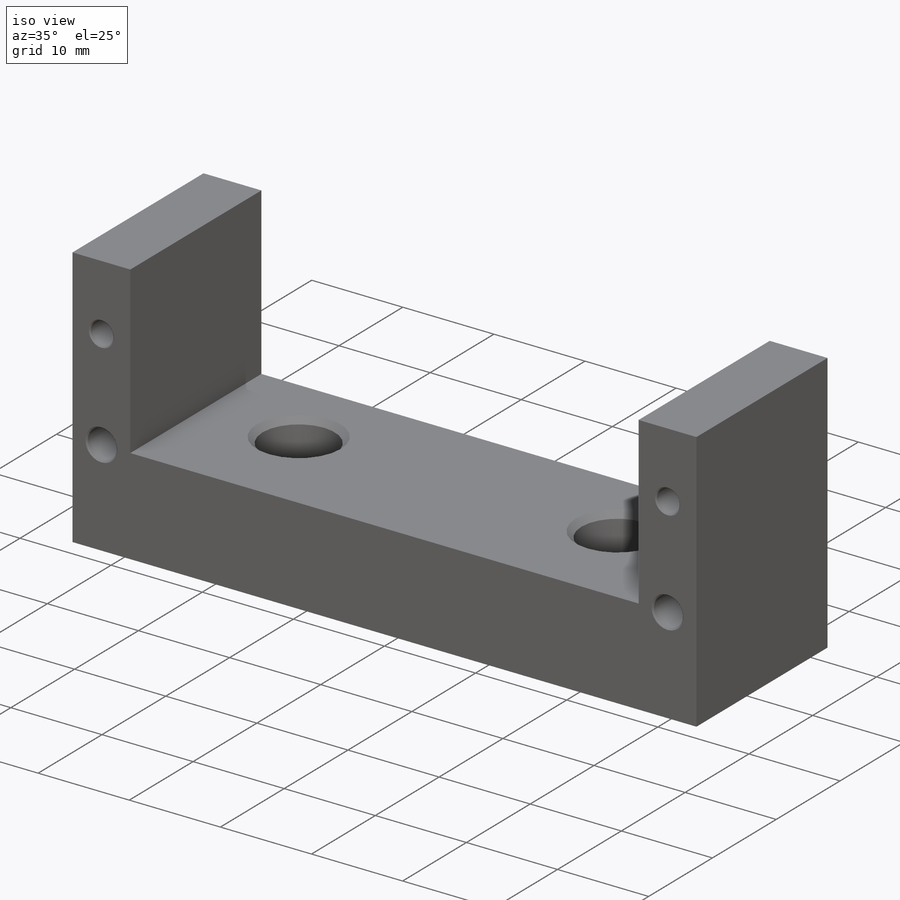
[diagram: iso view]
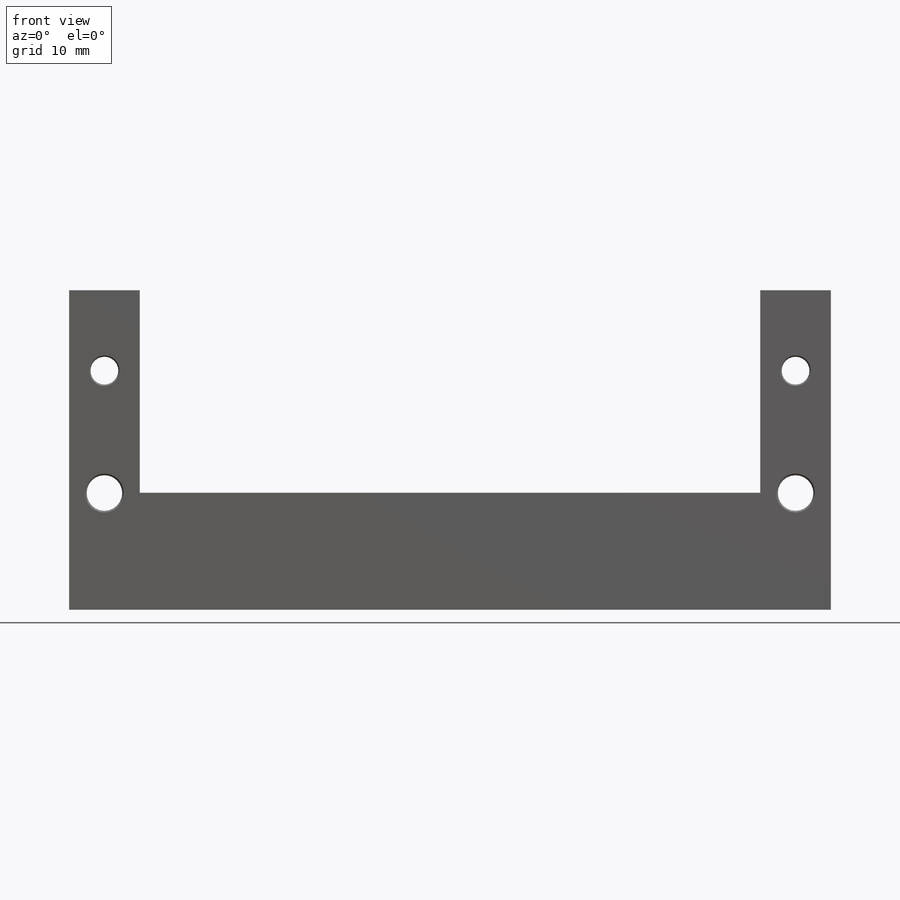
[diagram: front view]
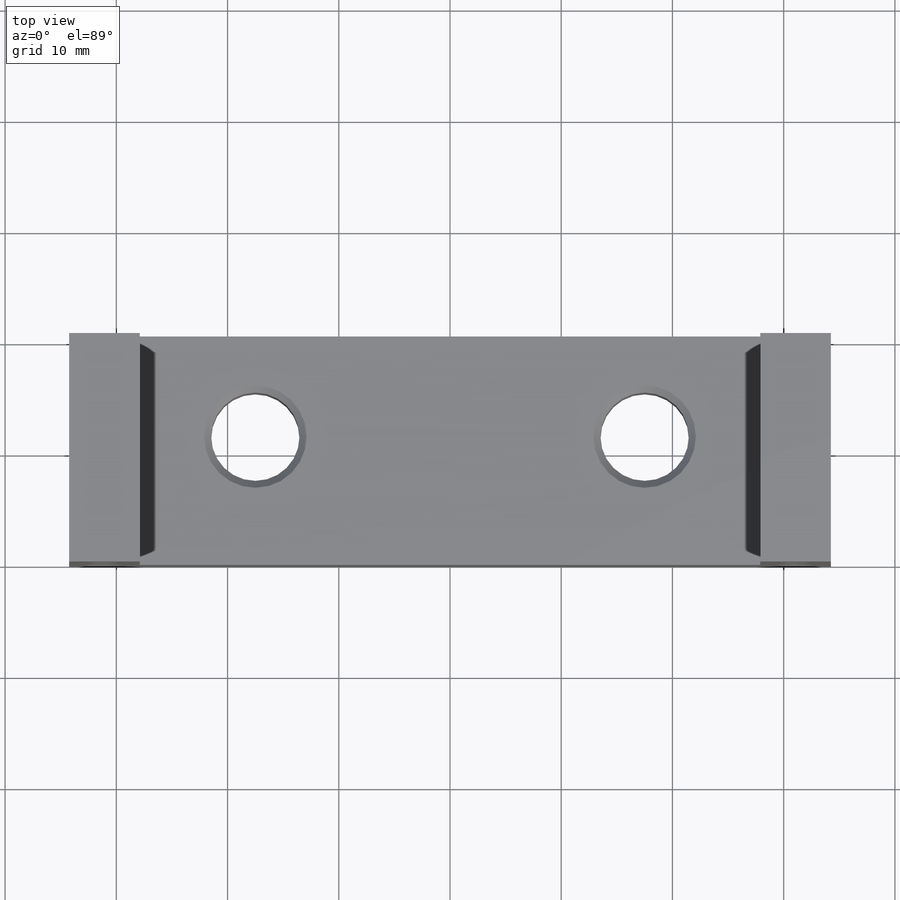
[diagram: top view]
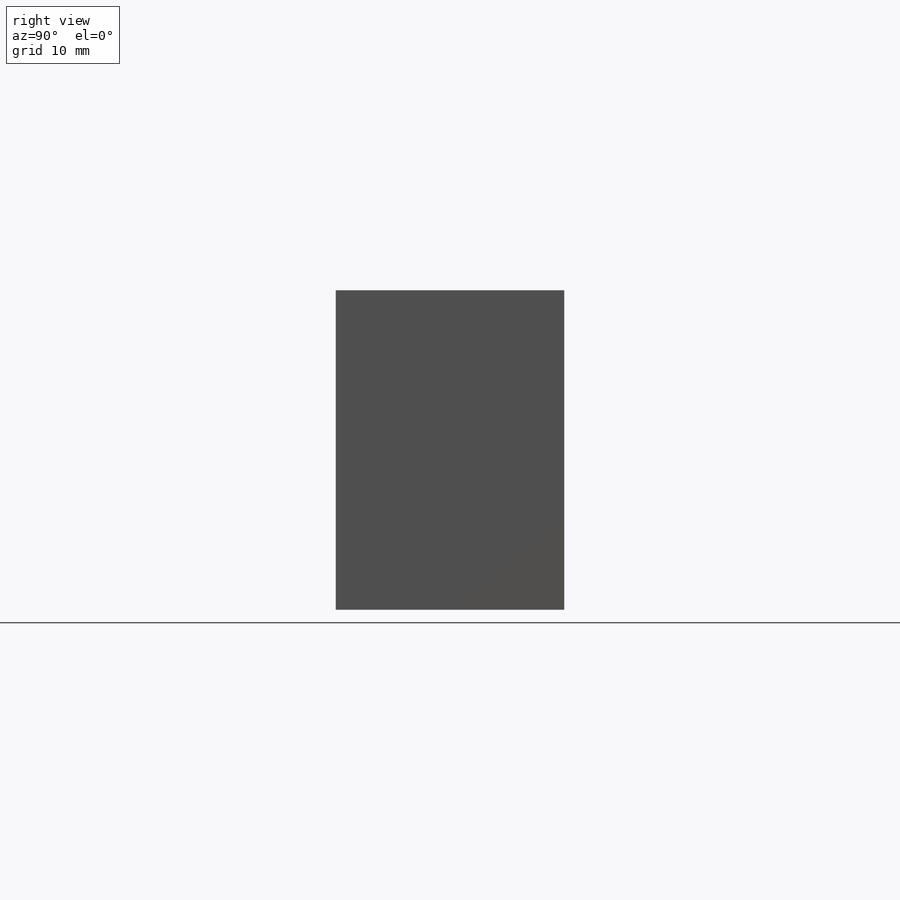
[diagram: right view]
SOLIDWORKS PART (.sldprt)
format: sldprt  version: not decoded by parser v0  size: 292,352 bytes
history: native  units: mm
features: sketch x10, hole x4, material x1, extrude x1, cut_extrude x1 (+16 scaffold rows collapsed)
feature tree (33):
  scaffold x16  (default folders/planes/origin — collapsed)
  material  "Material <not specified>"
  sketch  "Sketch1"  dims[D1=20.55mm D2=68.4872mm]
  extrude  "Boss-Extrude1"  Depth=28.732mm
  sketch  "Sketch2"  dims[D1=18.207mm D2=55.7872mm]
  cut_extrude  "Cut-Extrude1"  [1 undecoded]
  hole  "Ø2.5 (2.5) Diameter Hole1"  Diameter=2.5mm Depth=20.55mm
  sketch  "Sketch4"  dims[D1=21.5mm D2=62.1372mm]
  sketch  "Sketch5"  dims[hole-wizard template sketch: 46 standard entries collapsed; hole parameters kept: c15.Thru Hole Dia.=2.5mm c15.Thru Hole Depth=20.55mm c15.Near C'Sink Dia.=2.75mm c15.D4=~3.666174mm c15.Near C'Sink Angle=90.0deg c15.Far C'Sink Dia.=2.75mm c15.D6=~9.919017mm c15.Far C'Sink Angle=90.0deg]
  hole  "Ø3.2 (3.2) Diameter Hole1"  Diameter=3.2mm Depth=20.55mm
  sketch  "Sketch7"  dims[D1=10.5mm]
  sketch  "Sketch8"  dims[hole-wizard template sketch: 46 standard entries collapsed; hole parameters kept: c15.Thru Hole Dia.=3.2mm c15.Thru Hole Depth=20.55mm c15.Near C'Sink Dia.=3.5mm c15.D4=~3.666174mm c15.Near C'Sink Angle=90.0deg c15.Far C'Sink Dia.=3.5mm c15.D6=~9.919017mm c15.Far C'Sink Angle=90.0deg]
  hole  "5/16 (0.3125) Diameter Hole1"  Diameter=7.9375mm Depth=10.525mm
  sketch  "Sketch10"  dims[c1.D1=10.0mm c1.D2=35.0mm c2.D1=9.0mm]
  sketch  "Sketch11"  dims[hole-wizard template sketch: 54 standard entries collapsed; hole parameters kept: c17.Thru Hole Dia.=7.9375mm c17.Thru Hole Depth=10.525mm c17.Near C'Sink Dia.=9.2075mm c17.D4=~3.666174mm c17.Near C'Sink Angle=90.0deg]
  hole  "1/8 (0.125) Diameter Hole1"  Diameter=3.175mm Depth=9.53mm
  sketch  "Sketch13"  dims[D1=55.0mm D2=9.0mm]
  sketch  "Sketch14"  dims[hole-wizard template sketch: 39 standard entries collapsed; hole parameters kept: c13.Hole Dia.=3.175mm c13.Hole Depth=9.53mm c13.Near C'Sink Dia.=3.81mm c13.D4=~33.297463mm c13.Near C'Sink Angle=90.0deg c14.D5=~14.816244mm c14.Drill Angle=118.0deg]
decode coverage: 15 of 16 modeling features carry decoded parameters
note: ~ marks probable driven/reference dimensions
note: 1 parameter value undecoded
summary: Diameter pulled from absorbed wizard sketch
note: suppression state not decoded; provenance and decode notes live in map.json
